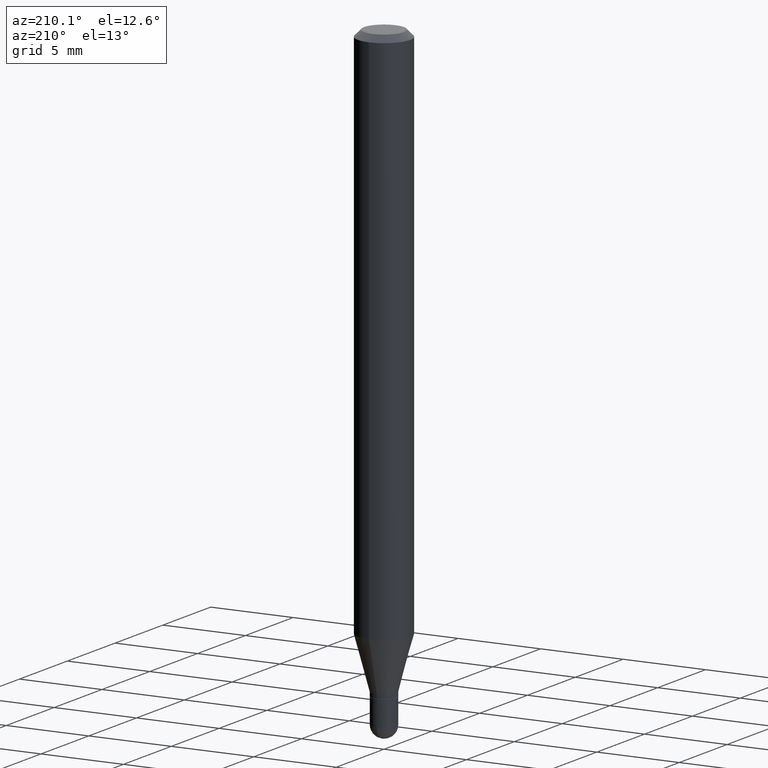
[diagram: clean part render]
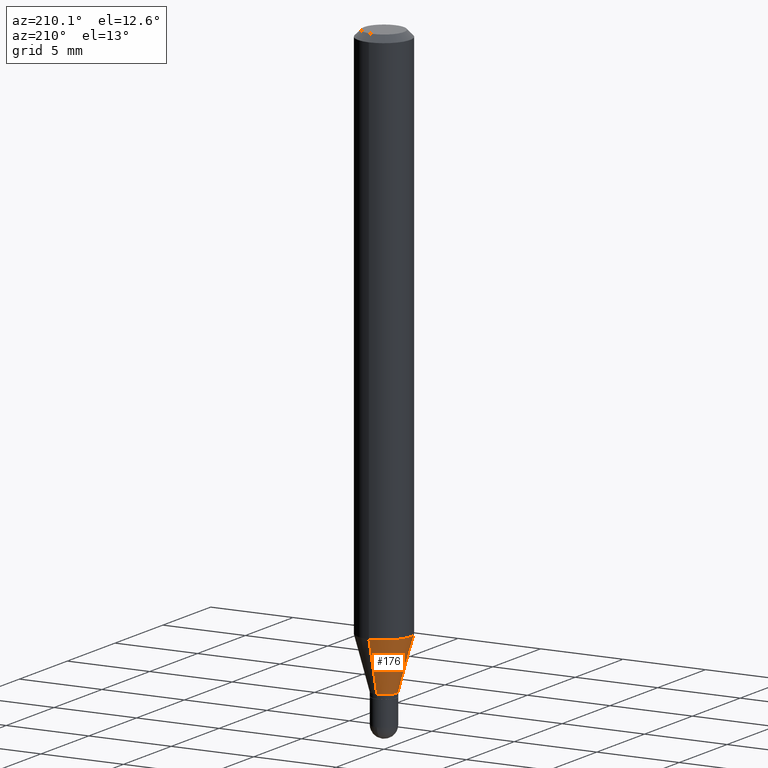
[diagram: same view with one face highlighted and labeled with its STEP entity id]
A machine part, auxiliary view. The second image highlights one B-rep face of the part: STEP entity #176.
In plain terms, the highlighted conical surface has half-angle 15 deg.
Its self-contained STEP definition (entity closure, byte-faithful):
#13 = CARTESIAN_POINT ( 'NONE',  ( -4.364351673553605587E-16, -0.06250000000000449640, -1.277842323350228515 ) ) ;
#19 = CARTESIAN_POINT ( 'NONE',  ( 4.440892098500935790E-16, 0.06249999999999551054, -1.277842323350228959 ) ) ;
#22 = EDGE_LOOP ( 'NONE', ( #69, #310, #87, #156 ) ) ;
#23 = CARTESIAN_POINT ( 'NONE',  ( 3.426100445652404486E-29, -4.891567291592364272E-15, -1.401000000000000245 ) ) ;
#24 = EDGE_CURVE ( 'NONE', #342, #133, #290, .T. ) ;
#47 = CARTESIAN_POINT ( 'NONE',  ( -2.059973989917119804E-16, -0.02950000000000509159, -1.401000000000000245 ) ) ;
#60 = AXIS2_PLACEMENT_3D ( 'NONE', #197, #192, #360 ) ;
#63 = LINE ( 'NONE', #303, #386 ) ;
#69 = ORIENTED_EDGE ( 'NONE', *, *, #281, .F. ) ;
#87 = ORIENTED_EDGE ( 'NONE', *, *, #24, .T. ) ;
#91 = DIRECTION ( 'NONE',  ( -1.807323732225336056E-15, -0.2588190451025190186, 0.9659258262890687563 ) ) ;
#98 = DIRECTION ( 'NONE',  ( -2.445467841293650250E-29, 3.491482720622672358E-15, 1.000000000000000000 ) ) ;
#99 = VERTEX_POINT ( 'NONE', #362 ) ;
#124 = VERTEX_POINT ( 'NONE', #19 ) ;
#133 = VERTEX_POINT ( 'NONE', #13 ) ;
#134 = DIRECTION ( 'NONE',  ( 1.839019923739606232E-15, 0.2588190451025257910, 0.9659258262890669799 ) ) ;
#156 = ORIENTED_EDGE ( 'NONE', *, *, #428, .F. ) ;
#176 = ADVANCED_FACE ( 'NONE', ( #461 ), #358, .T. ) ;
#192 = DIRECTION ( 'NONE',  ( -2.445467841293650250E-29, 3.491482720622672358E-15, 1.000000000000000000 ) ) ;
#197 = CARTESIAN_POINT ( 'NONE',  ( 3.124922307996946489E-29, -4.461564391657653796E-15, -1.277842323350228737 ) ) ;
#236 = AXIS2_PLACEMENT_3D ( 'NONE', #392, #436, #396 ) ;
#268 = VECTOR ( 'NONE', #91, 39.37007874015748143 ) ;
#281 = EDGE_CURVE ( 'NONE', #99, #124, #63, .T. ) ;
#290 = LINE ( 'NONE', #47, #268 ) ;
#303 = CARTESIAN_POINT ( 'NONE',  ( 2.096101070492652151E-16, 0.02949999999999530775, -1.401000000000000245 ) ) ;
#310 = ORIENTED_EDGE ( 'NONE', *, *, #345, .T. ) ;
#342 = VERTEX_POINT ( 'NONE', #355 ) ;
#345 = EDGE_CURVE ( 'NONE', #99, #342, #508, .T. ) ;
#355 = CARTESIAN_POINT ( 'NONE',  ( -2.059973989917119804E-16, -0.02950000000000509159, -1.401000000000000245 ) ) ;
#358 = CONICAL_SURFACE ( 'NONE', #423, 0.02950000000000019967, 0.2617993877991511287 ) ;
#360 = DIRECTION ( 'NONE',  ( -6.982962677686265922E-15, -1.000000000000000000, 4.370956789862821150E-15 ) ) ;
#362 = CARTESIAN_POINT ( 'NONE',  ( 3.268496584496795573E-16, 0.02949999999999530775, -1.401000000000000245 ) ) ;
#386 = VECTOR ( 'NONE', #134, 39.37007874015748143 ) ;
#392 = CARTESIAN_POINT ( 'NONE',  ( 3.426100445652404486E-29, -4.891567291592364272E-15, -1.401000000000000245 ) ) ;
#396 = DIRECTION ( 'NONE',  ( -6.982962677686265922E-15, -1.000000000000000000, 0.000000000000000000 ) ) ;
#423 = AXIS2_PLACEMENT_3D ( 'NONE', #23, #98, #463 ) ;
#428 = EDGE_CURVE ( 'NONE', #124, #133, #458, .T. ) ;
#436 = DIRECTION ( 'NONE',  ( -2.445467841293650250E-29, 3.491482720622672358E-15, 1.000000000000000000 ) ) ;
#458 = CIRCLE ( 'NONE', #60, 0.06250000000000000000 ) ;
#461 = FACE_OUTER_BOUND ( 'NONE', #22, .T. ) ;
#463 = DIRECTION ( 'NONE',  ( -6.982962677686265922E-15, -1.000000000000000000, 0.000000000000000000 ) ) ;
#508 = CIRCLE ( 'NONE', #236, 0.02950000000000019967 ) ;